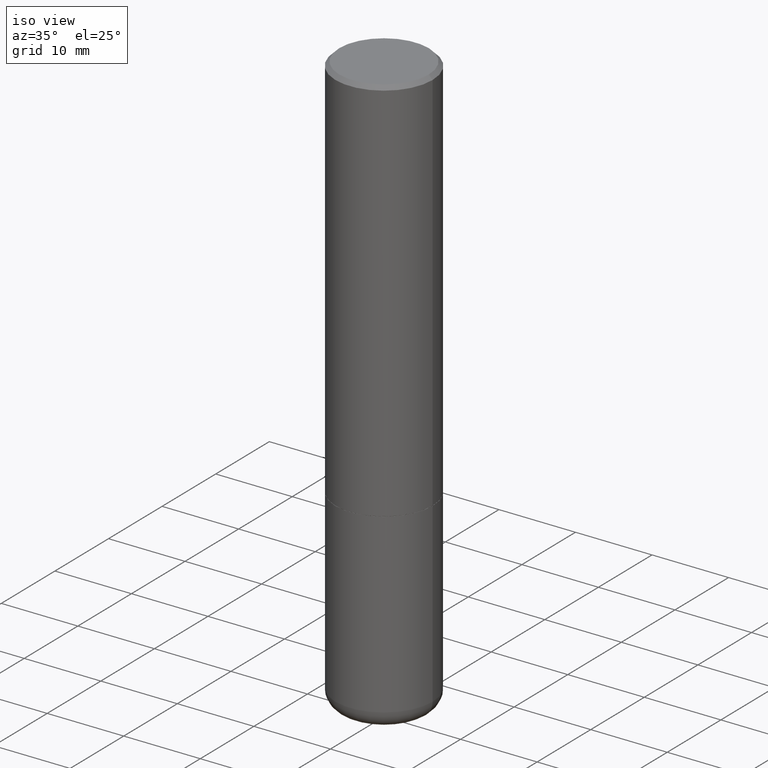
[diagram: clean part render]
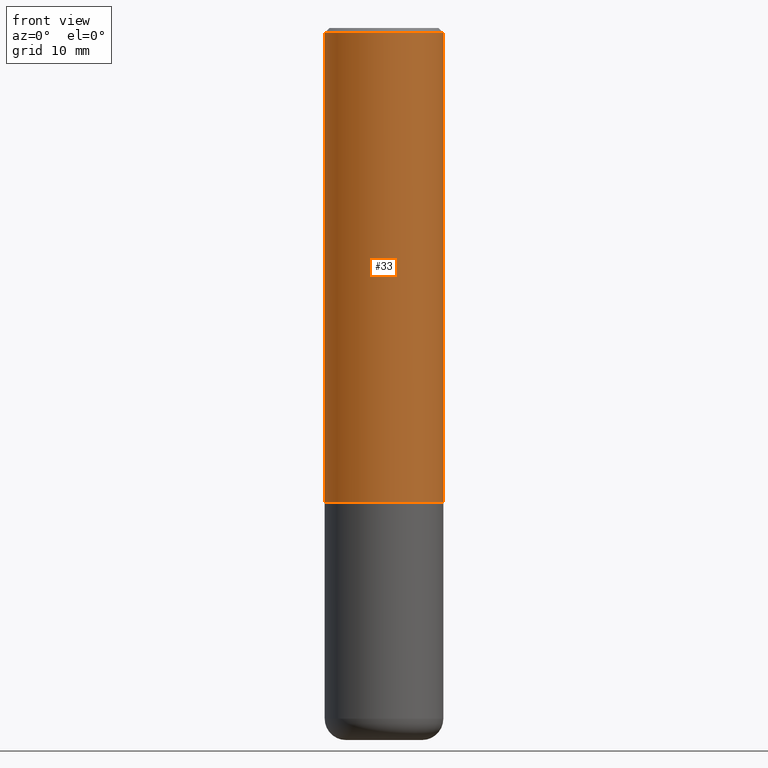
[diagram: tour spotlight — one face highlighted and labeled with its STEP entity id]
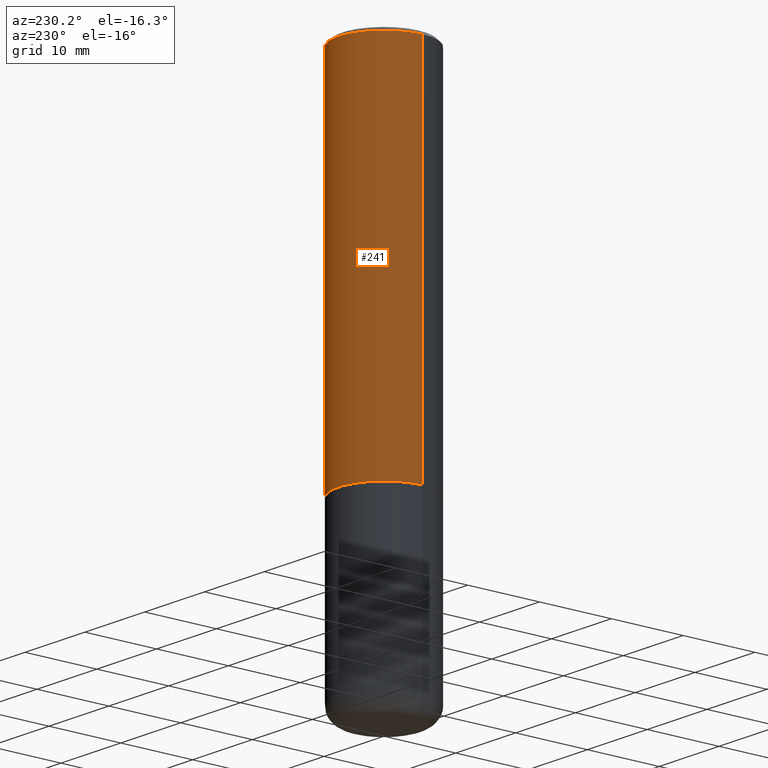
[diagram: tour spotlight — one face highlighted and labeled with its STEP entity id]
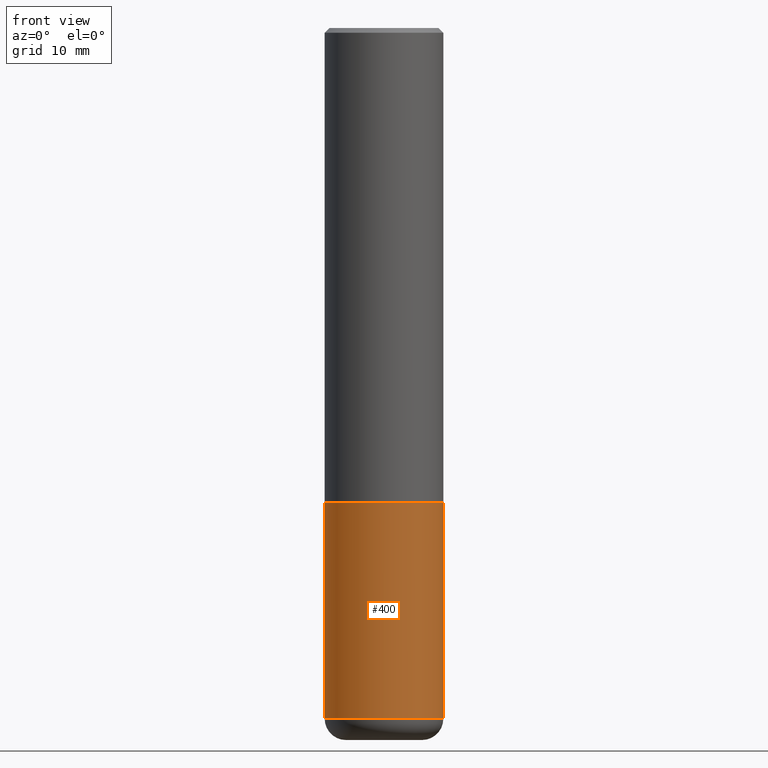
[diagram: tour spotlight — one face highlighted and labeled with its STEP entity id]
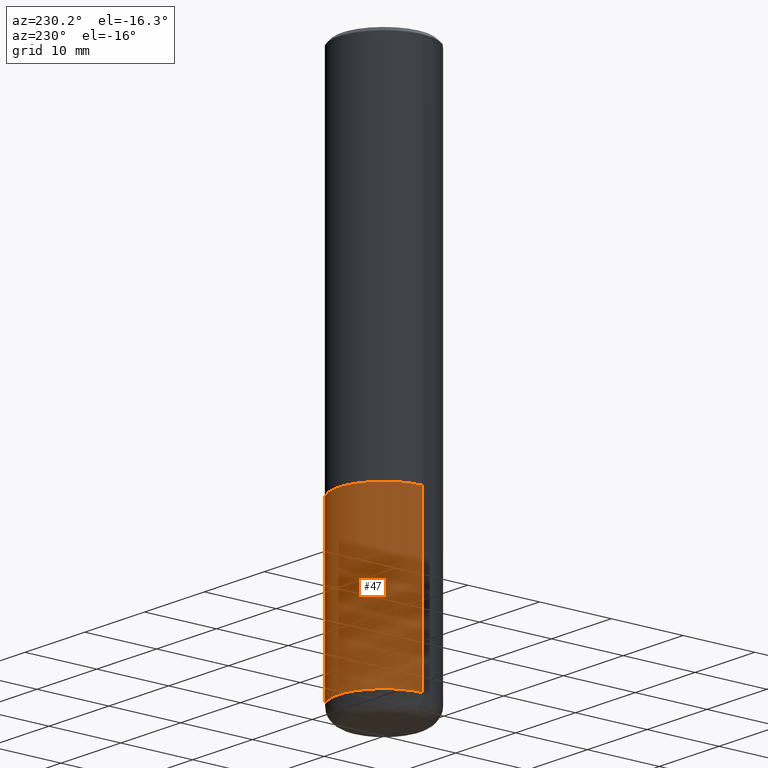
[diagram: tour spotlight — one face highlighted and labeled with its STEP entity id]
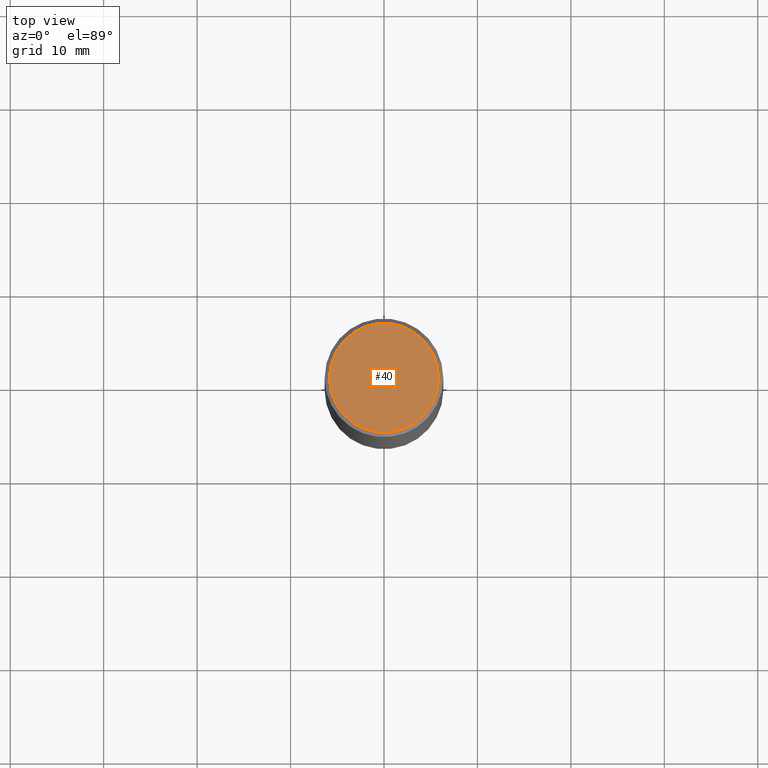
[diagram: tour spotlight — one face highlighted and labeled with its STEP entity id]
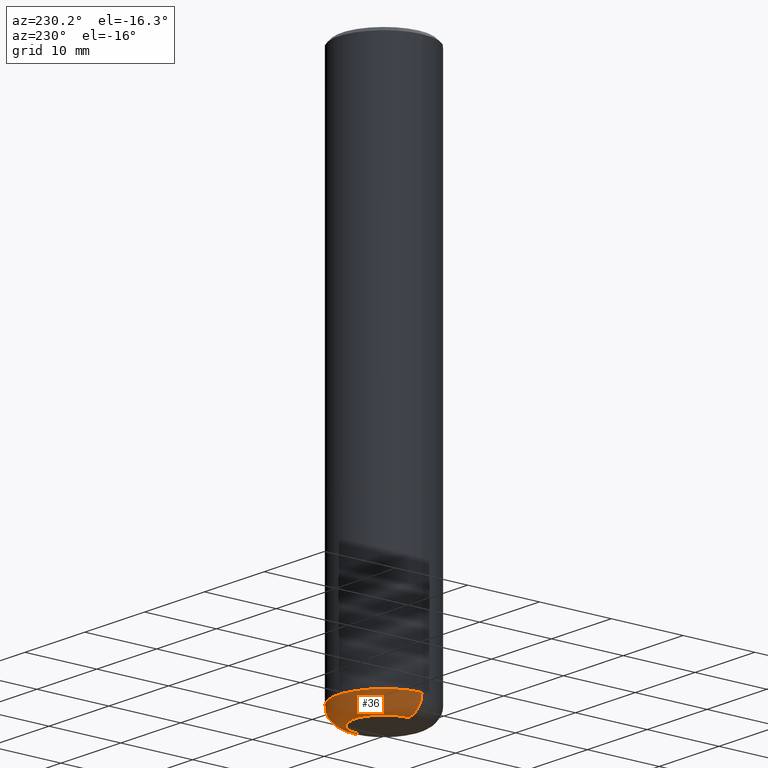
[diagram: tour spotlight — one face highlighted and labeled with its STEP entity id]
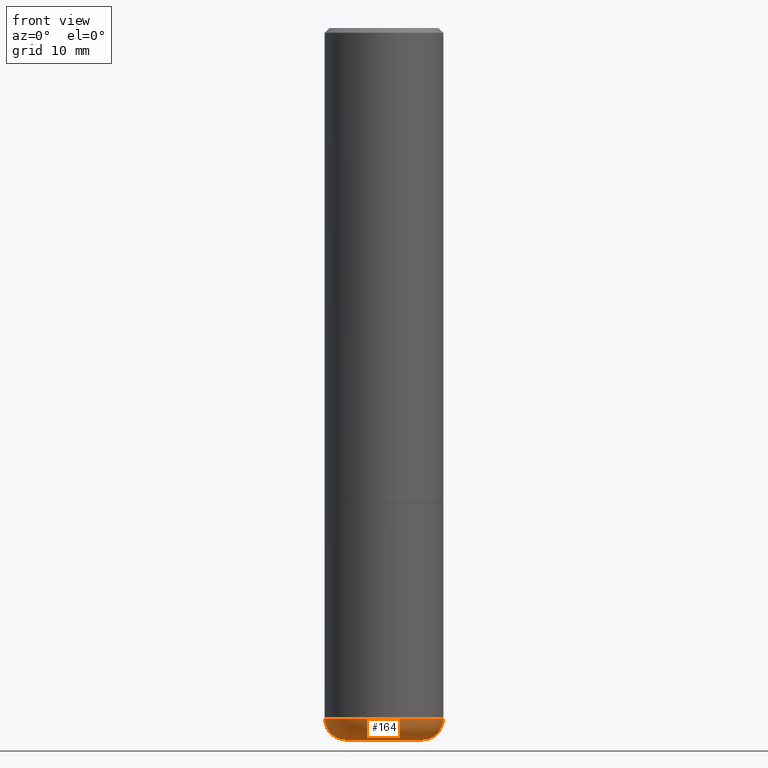
[diagram: tour spotlight — one face highlighted and labeled with its STEP entity id]
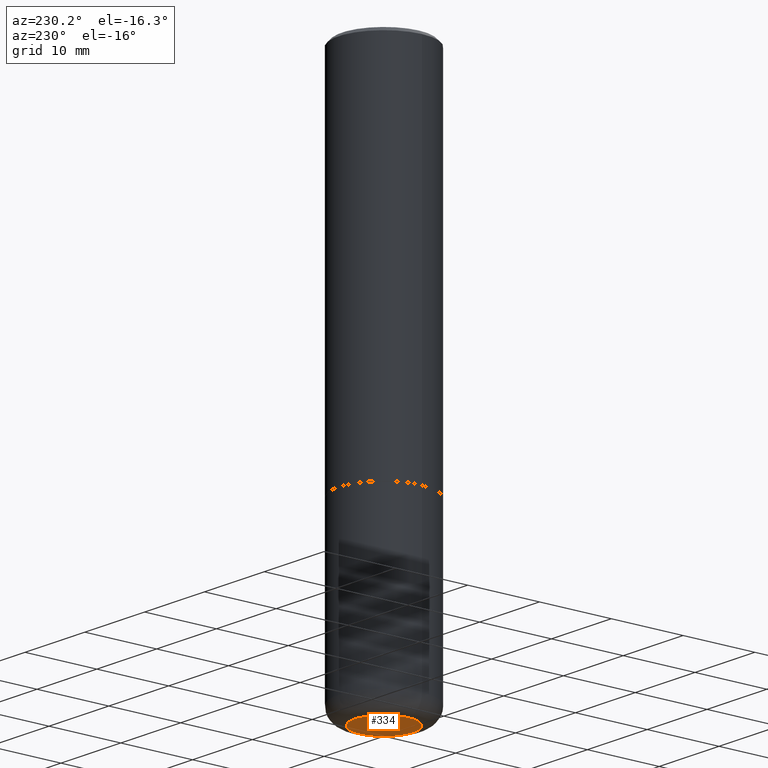
[diagram: tour spotlight — one face highlighted and labeled with its STEP entity id]
A machine part: a face-by-face anatomy tour. The part has 14 B-rep faces; the first image is the clean iso view, then the 8 largest visible faces are spotlighted one at a time (largest first), each with its STEP entity span.

Face 1 — front view, entity #33. In plain terms, the highlighted cylindrical surface (partial cylindrical patch) has radius 6.35 mm, axis along (-0, 0, 1).
Definition (entity closure, byte-faithful):
#8 = CARTESIAN_POINT ( 'NONE',  ( 4.890937612370287172E-31, -6.982962677686310098E-17, -0.02000000000000005593 ) ) ;
#33 = ADVANCED_FACE ( 'NONE', ( #124 ), #230, .T. ) ;
#35 = CARTESIAN_POINT ( 'NONE',  ( -0.2500000000000001110, 1.776356839400251254E-15, -1.229733772563727146E-29 ) ) ;
#44 = VERTEX_POINT ( 'NONE', #51 ) ;
#51 = CARTESIAN_POINT ( 'NONE',  ( 0.2500000000000000000, -1.784954126219746189E-15, -0.02000000000000005593 ) ) ;
#53 = DIRECTION ( 'NONE',  ( 1.000000000000000000, -6.982962677686267499E-15, 4.876176775795936353E-29 ) ) ;
#79 = ORIENTED_EDGE ( 'NONE', *, *, #139, .F. ) ;
#97 = EDGE_CURVE ( 'NONE', #159, #44, #364, .T. ) ;
#114 = EDGE_CURVE ( 'NONE', #354, #313, #228, .T. ) ;
#124 = FACE_OUTER_BOUND ( 'NONE', #127, .T. ) ;
#127 = EDGE_LOOP ( 'NONE', ( #79, #309, #321, #261 ) ) ;
#133 = AXIS2_PLACEMENT_3D ( 'NONE', #351, #231, #53 ) ;
#136 = LINE ( 'NONE', #374, #336 ) ;
#139 = EDGE_CURVE ( 'NONE', #354, #159, #329, .T. ) ;
#141 = DIRECTION ( 'NONE',  ( -2.445468806185136877E-29, 3.491481338843145188E-15, 1.000000000000000000 ) ) ;
#143 = CARTESIAN_POINT ( 'NONE',  ( -0.2500000000000002220, -1.748293572161901516E-15, -1.999000000000000110 ) ) ;
#159 = VERTEX_POINT ( 'NONE', #234 ) ;
#173 = CARTESIAN_POINT ( 'NONE',  ( 0.2500000000000002220, -8.725211865769017202E-15, -1.999000000000000110 ) ) ;
#183 = VECTOR ( 'NONE', #268, 39.37007874015748143 ) ;
#228 = CIRCLE ( 'NONE', #395, 0.2500000000000002220 ) ;
#230 = CYLINDRICAL_SURFACE ( 'NONE', #133, 0.2500000000000001110 ) ;
#231 = DIRECTION ( 'NONE',  ( -2.445468806185136597E-29, 3.491481338843145583E-15, 1.000000000000000000 ) ) ;
#234 = CARTESIAN_POINT ( 'NONE',  ( -0.2500000000000000000, 1.675911042644703577E-15, -0.02000000000000005593 ) ) ;
#261 = ORIENTED_EDGE ( 'NONE', *, *, #97, .F. ) ;
#268 = DIRECTION ( 'NONE',  ( -2.445468806185136877E-29, 3.491481338843145188E-15, 1.000000000000000000 ) ) ;
#296 = DIRECTION ( 'NONE',  ( -2.445468806185136597E-29, 3.491481338843145583E-15, 1.000000000000000000 ) ) ;
#307 = EDGE_CURVE ( 'NONE', #313, #44, #136, .T. ) ;
#309 = ORIENTED_EDGE ( 'NONE', *, *, #114, .T. ) ;
#313 = VERTEX_POINT ( 'NONE', #173 ) ;
#321 = ORIENTED_EDGE ( 'NONE', *, *, #307, .T. ) ;
#329 = LINE ( 'NONE', #35, #183 ) ;
#335 = CARTESIAN_POINT ( 'NONE',  ( 4.888492143564088712E-29, -6.979471196347448158E-15, -1.999000000000000110 ) ) ;
#336 = VECTOR ( 'NONE', #141, 39.37007874015748143 ) ;
#351 = CARTESIAN_POINT ( 'NONE',  ( 0.000000000000000000, 0.000000000000000000, 0.000000000000000000 ) ) ;
#354 = VERTEX_POINT ( 'NONE', #143 ) ;
#364 = CIRCLE ( 'NONE', #403, 0.2500000000000000000 ) ;
#365 = DIRECTION ( 'NONE',  ( 1.000000000000000000, -6.982962677686266711E-15, 0.000000000000000000 ) ) ;
#374 = CARTESIAN_POINT ( 'NONE',  ( 0.2500000000000001110, -1.745740669421567664E-15, 1.219044193948984649E-29 ) ) ;
#388 = DIRECTION ( 'NONE',  ( -2.445468806185136597E-29, 3.491481338843145583E-15, 1.000000000000000000 ) ) ;
#391 = DIRECTION ( 'NONE',  ( 1.000000000000000000, -6.982962677686268288E-15, 0.000000000000000000 ) ) ;
#395 = AXIS2_PLACEMENT_3D ( 'NONE', #335, #296, #391 ) ;
#403 = AXIS2_PLACEMENT_3D ( 'NONE', #8, #388, #365 ) ;

Face 2 — auxiliary view, entity #241. In plain terms, the highlighted cylindrical surface (partial cylindrical patch) has radius 6.35 mm, axis along (-0, 0, 1).
Definition (entity closure, byte-faithful):
#11 = DIRECTION ( 'NONE',  ( 1.000000000000000000, -6.982962677686266711E-15, 0.000000000000000000 ) ) ;
#24 = AXIS2_PLACEMENT_3D ( 'NONE', #78, #278, #272 ) ;
#29 = DIRECTION ( 'NONE',  ( 1.000000000000000000, -6.982962677686267499E-15, 4.876176775795936353E-29 ) ) ;
#35 = CARTESIAN_POINT ( 'NONE',  ( -0.2500000000000001110, 1.776356839400251254E-15, -1.229733772563727146E-29 ) ) ;
#37 = CYLINDRICAL_SURFACE ( 'NONE', #119, 0.2500000000000001110 ) ;
#44 = VERTEX_POINT ( 'NONE', #51 ) ;
#51 = CARTESIAN_POINT ( 'NONE',  ( 0.2500000000000000000, -1.784954126219746189E-15, -0.02000000000000005593 ) ) ;
#72 = CARTESIAN_POINT ( 'NONE',  ( 0.000000000000000000, 0.000000000000000000, 0.000000000000000000 ) ) ;
#78 = CARTESIAN_POINT ( 'NONE',  ( 4.888492143564088712E-29, -6.979471196347448158E-15, -1.999000000000000110 ) ) ;
#105 = CIRCLE ( 'NONE', #219, 0.2500000000000000000 ) ;
#115 = DIRECTION ( 'NONE',  ( -2.445468806185136597E-29, 3.491481338843145583E-15, 1.000000000000000000 ) ) ;
#119 = AXIS2_PLACEMENT_3D ( 'NONE', #72, #199, #29 ) ;
#136 = LINE ( 'NONE', #374, #336 ) ;
#139 = EDGE_CURVE ( 'NONE', #354, #159, #329, .T. ) ;
#141 = DIRECTION ( 'NONE',  ( -2.445468806185136877E-29, 3.491481338843145188E-15, 1.000000000000000000 ) ) ;
#143 = CARTESIAN_POINT ( 'NONE',  ( -0.2500000000000002220, -1.748293572161901516E-15, -1.999000000000000110 ) ) ;
#159 = VERTEX_POINT ( 'NONE', #234 ) ;
#173 = CARTESIAN_POINT ( 'NONE',  ( 0.2500000000000002220, -8.725211865769017202E-15, -1.999000000000000110 ) ) ;
#180 = ORIENTED_EDGE ( 'NONE', *, *, #307, .F. ) ;
#183 = VECTOR ( 'NONE', #268, 39.37007874015748143 ) ;
#199 = DIRECTION ( 'NONE',  ( -2.445468806185136597E-29, 3.491481338843145583E-15, 1.000000000000000000 ) ) ;
#219 = AXIS2_PLACEMENT_3D ( 'NONE', #242, #115, #11 ) ;
#234 = CARTESIAN_POINT ( 'NONE',  ( -0.2500000000000000000, 1.675911042644703577E-15, -0.02000000000000005593 ) ) ;
#241 = ADVANCED_FACE ( 'NONE', ( #337 ), #37, .T. ) ;
#242 = CARTESIAN_POINT ( 'NONE',  ( 4.890937612370287172E-31, -6.982962677686310098E-17, -0.02000000000000005593 ) ) ;
#254 = CIRCLE ( 'NONE', #24, 0.2500000000000002220 ) ;
#268 = DIRECTION ( 'NONE',  ( -2.445468806185136877E-29, 3.491481338843145188E-15, 1.000000000000000000 ) ) ;
#272 = DIRECTION ( 'NONE',  ( 1.000000000000000000, -6.982962677686268288E-15, 0.000000000000000000 ) ) ;
#275 = EDGE_CURVE ( 'NONE', #44, #159, #105, .T. ) ;
#278 = DIRECTION ( 'NONE',  ( -2.445468806185136597E-29, 3.491481338843145583E-15, 1.000000000000000000 ) ) ;
#286 = ORIENTED_EDGE ( 'NONE', *, *, #275, .F. ) ;
#307 = EDGE_CURVE ( 'NONE', #313, #44, #136, .T. ) ;
#313 = VERTEX_POINT ( 'NONE', #173 ) ;
#317 = ORIENTED_EDGE ( 'NONE', *, *, #139, .T. ) ;
#329 = LINE ( 'NONE', #35, #183 ) ;
#336 = VECTOR ( 'NONE', #141, 39.37007874015748143 ) ;
#337 = FACE_OUTER_BOUND ( 'NONE', #384, .T. ) ;
#354 = VERTEX_POINT ( 'NONE', #143 ) ;
#358 = EDGE_CURVE ( 'NONE', #313, #354, #254, .T. ) ;
#374 = CARTESIAN_POINT ( 'NONE',  ( 0.2500000000000001110, -1.745740669421567664E-15, 1.219044193948984649E-29 ) ) ;
#384 = EDGE_LOOP ( 'NONE', ( #399, #317, #286, #180 ) ) ;
#399 = ORIENTED_EDGE ( 'NONE', *, *, #358, .T. ) ;

Face 3 — front view, entity #400. In plain terms, the highlighted cylindrical surface (partial cylindrical patch) has radius 6.35 mm, axis along (-0, 0, 1).
Definition (entity closure, byte-faithful):
#4 = LINE ( 'NONE', #130, #126 ) ;
#14 = CARTESIAN_POINT ( 'NONE',  ( 4.890937612370273754E-29, -6.982962677686291954E-15, -2.000000000000000444 ) ) ;
#17 = LINE ( 'NONE', #370, #140 ) ;
#58 = ORIENTED_EDGE ( 'NONE', *, *, #297, .F. ) ;
#67 = DIRECTION ( 'NONE',  ( 1.000000000000000000, -6.982962677686270655E-15, 0.000000000000000000 ) ) ;
#68 = EDGE_CURVE ( 'NONE', #277, #397, #71, .T. ) ;
#71 = CIRCLE ( 'NONE', #266, 0.2500000000000000000 ) ;
#73 = DIRECTION ( 'NONE',  ( -2.445468806185136597E-29, 3.491481338843145583E-15, 1.000000000000000000 ) ) ;
#85 = AXIS2_PLACEMENT_3D ( 'NONE', #14, #73, #367 ) ;
#95 = AXIS2_PLACEMENT_3D ( 'NONE', #404, #251, #113 ) ;
#113 = DIRECTION ( 'NONE',  ( 1.000000000000000000, -6.982962677686266711E-15, 4.876176775795935793E-29 ) ) ;
#126 = VECTOR ( 'NONE', #232, 39.37007874015748143 ) ;
#130 = CARTESIAN_POINT ( 'NONE',  ( -0.2500000000000000000, 1.776356839400250465E-15, -1.229733772563726445E-29 ) ) ;
#140 = VECTOR ( 'NONE', #368, 39.37007874015748143 ) ;
#167 = CARTESIAN_POINT ( 'NONE',  ( 7.116314225998749245E-29, -1.016021069603355467E-14, -2.910000000000000586 ) ) ;
#176 = CARTESIAN_POINT ( 'NONE',  ( 0.2499999999999998335, -1.190595136545512292E-14, -2.910000000000000586 ) ) ;
#179 = FACE_OUTER_BOUND ( 'NONE', #250, .T. ) ;
#213 = CARTESIAN_POINT ( 'NONE',  ( -0.2500000000000000000, -6.795229847459672846E-15, -2.000000000000000444 ) ) ;
#215 = CARTESIAN_POINT ( 'NONE',  ( 0.2500000000000000000, -8.728703347107858632E-15, -2.000000000000000444 ) ) ;
#218 = ORIENTED_EDGE ( 'NONE', *, *, #318, .T. ) ;
#232 = DIRECTION ( 'NONE',  ( -2.445468806185136877E-29, 3.491481338843145188E-15, 1.000000000000000000 ) ) ;
#235 = DIRECTION ( 'NONE',  ( -2.445468806185136597E-29, 3.491481338843145583E-15, 1.000000000000000000 ) ) ;
#247 = ORIENTED_EDGE ( 'NONE', *, *, #258, .F. ) ;
#249 = CARTESIAN_POINT ( 'NONE',  ( -0.2499999999999998335, -8.383853856633305780E-15, -2.910000000000000586 ) ) ;
#250 = EDGE_LOOP ( 'NONE', ( #247, #325, #218, #58 ) ) ;
#251 = DIRECTION ( 'NONE',  ( -2.445468806185136597E-29, 3.491481338843145583E-15, 1.000000000000000000 ) ) ;
#258 = EDGE_CURVE ( 'NONE', #277, #380, #4, .T. ) ;
#266 = AXIS2_PLACEMENT_3D ( 'NONE', #167, #235, #67 ) ;
#273 = CIRCLE ( 'NONE', #85, 0.2500000000000000000 ) ;
#277 = VERTEX_POINT ( 'NONE', #249 ) ;
#297 = EDGE_CURVE ( 'NONE', #380, #417, #273, .T. ) ;
#310 = CYLINDRICAL_SURFACE ( 'NONE', #95, 0.2500000000000000000 ) ;
#318 = EDGE_CURVE ( 'NONE', #397, #417, #17, .T. ) ;
#325 = ORIENTED_EDGE ( 'NONE', *, *, #68, .T. ) ;
#367 = DIRECTION ( 'NONE',  ( 1.000000000000000000, -6.982962677686266711E-15, 0.000000000000000000 ) ) ;
#368 = DIRECTION ( 'NONE',  ( -2.445468806185136877E-29, 3.491481338843145188E-15, 1.000000000000000000 ) ) ;
#370 = CARTESIAN_POINT ( 'NONE',  ( 0.2500000000000000000, -1.745740669421566678E-15, 1.219044193948983948E-29 ) ) ;
#380 = VERTEX_POINT ( 'NONE', #213 ) ;
#397 = VERTEX_POINT ( 'NONE', #176 ) ;
#400 = ADVANCED_FACE ( 'NONE', ( #179 ), #310, .T. ) ;
#404 = CARTESIAN_POINT ( 'NONE',  ( 0.000000000000000000, 0.000000000000000000, 0.000000000000000000 ) ) ;
#417 = VERTEX_POINT ( 'NONE', #215 ) ;

Face 4 — auxiliary view, entity #47. In plain terms, the highlighted cylindrical surface (partial cylindrical patch) has radius 6.35 mm, axis along (-0, 0, 1).
Definition (entity closure, byte-faithful):
#2 = AXIS2_PLACEMENT_3D ( 'NONE', #98, #135, #361 ) ;
#4 = LINE ( 'NONE', #130, #126 ) ;
#17 = LINE ( 'NONE', #370, #140 ) ;
#21 = FACE_OUTER_BOUND ( 'NONE', #315, .T. ) ;
#43 = DIRECTION ( 'NONE',  ( -2.445468806185136597E-29, 3.491481338843145583E-15, 1.000000000000000000 ) ) ;
#47 = ADVANCED_FACE ( 'NONE', ( #21 ), #153, .T. ) ;
#98 = CARTESIAN_POINT ( 'NONE',  ( 4.890937612370273754E-29, -6.982962677686291954E-15, -2.000000000000000444 ) ) ;
#126 = VECTOR ( 'NONE', #232, 39.37007874015748143 ) ;
#130 = CARTESIAN_POINT ( 'NONE',  ( -0.2500000000000000000, 1.776356839400250465E-15, -1.229733772563726445E-29 ) ) ;
#135 = DIRECTION ( 'NONE',  ( -2.445468806185136597E-29, 3.491481338843145583E-15, 1.000000000000000000 ) ) ;
#140 = VECTOR ( 'NONE', #368, 39.37007874015748143 ) ;
#153 = CYLINDRICAL_SURFACE ( 'NONE', #356, 0.2500000000000000000 ) ;
#154 = CIRCLE ( 'NONE', #265, 0.2500000000000000000 ) ;
#176 = CARTESIAN_POINT ( 'NONE',  ( 0.2499999999999998335, -1.190595136545512292E-14, -2.910000000000000586 ) ) ;
#178 = EDGE_CURVE ( 'NONE', #417, #380, #343, .T. ) ;
#213 = CARTESIAN_POINT ( 'NONE',  ( -0.2500000000000000000, -6.795229847459672846E-15, -2.000000000000000444 ) ) ;
#214 = ORIENTED_EDGE ( 'NONE', *, *, #318, .F. ) ;
#215 = CARTESIAN_POINT ( 'NONE',  ( 0.2500000000000000000, -8.728703347107858632E-15, -2.000000000000000444 ) ) ;
#225 = ORIENTED_EDGE ( 'NONE', *, *, #178, .F. ) ;
#232 = DIRECTION ( 'NONE',  ( -2.445468806185136877E-29, 3.491481338843145188E-15, 1.000000000000000000 ) ) ;
#249 = CARTESIAN_POINT ( 'NONE',  ( -0.2499999999999998335, -8.383853856633305780E-15, -2.910000000000000586 ) ) ;
#258 = EDGE_CURVE ( 'NONE', #277, #380, #4, .T. ) ;
#263 = DIRECTION ( 'NONE',  ( 1.000000000000000000, -6.982962677686266711E-15, 4.876176775795935793E-29 ) ) ;
#265 = AXIS2_PLACEMENT_3D ( 'NONE', #398, #43, #342 ) ;
#277 = VERTEX_POINT ( 'NONE', #249 ) ;
#288 = CARTESIAN_POINT ( 'NONE',  ( 0.000000000000000000, 0.000000000000000000, 0.000000000000000000 ) ) ;
#293 = ORIENTED_EDGE ( 'NONE', *, *, #311, .T. ) ;
#311 = EDGE_CURVE ( 'NONE', #397, #277, #154, .T. ) ;
#315 = EDGE_LOOP ( 'NONE', ( #293, #406, #225, #214 ) ) ;
#318 = EDGE_CURVE ( 'NONE', #397, #417, #17, .T. ) ;
#342 = DIRECTION ( 'NONE',  ( 1.000000000000000000, -6.982962677686270655E-15, 0.000000000000000000 ) ) ;
#343 = CIRCLE ( 'NONE', #2, 0.2500000000000000000 ) ;
#356 = AXIS2_PLACEMENT_3D ( 'NONE', #288, #362, #263 ) ;
#361 = DIRECTION ( 'NONE',  ( 1.000000000000000000, -6.982962677686266711E-15, 0.000000000000000000 ) ) ;
#362 = DIRECTION ( 'NONE',  ( -2.445468806185136597E-29, 3.491481338843145583E-15, 1.000000000000000000 ) ) ;
#368 = DIRECTION ( 'NONE',  ( -2.445468806185136877E-29, 3.491481338843145188E-15, 1.000000000000000000 ) ) ;
#370 = CARTESIAN_POINT ( 'NONE',  ( 0.2500000000000000000, -1.745740669421566678E-15, 1.219044193948983948E-29 ) ) ;
#380 = VERTEX_POINT ( 'NONE', #213 ) ;
#397 = VERTEX_POINT ( 'NONE', #176 ) ;
#398 = CARTESIAN_POINT ( 'NONE',  ( 7.116314225998749245E-29, -1.016021069603355467E-14, -2.910000000000000586 ) ) ;
#406 = ORIENTED_EDGE ( 'NONE', *, *, #258, .T. ) ;
#417 = VERTEX_POINT ( 'NONE', #215 ) ;

Face 5 — top view, entity #40. In plain terms, the highlighted planar face has unit normal (0, -0, -1).
Definition (entity closure, byte-faithful):
#7 = CIRCLE ( 'NONE', #65, 0.2299999999999998712 ) ;
#9 = DIRECTION ( 'NONE',  ( -2.445468806185136597E-29, 3.491481338843145583E-15, 1.000000000000000000 ) ) ;
#40 = ADVANCED_FACE ( 'NONE', ( #408 ), #189, .F. ) ;
#46 = VERTEX_POINT ( 'NONE', #186 ) ;
#62 = ORIENTED_EDGE ( 'NONE', *, *, #63, .T. ) ;
#63 = EDGE_CURVE ( 'NONE', #253, #46, #322, .T. ) ;
#65 = AXIS2_PLACEMENT_3D ( 'NONE', #276, #282, #305 ) ;
#87 = CARTESIAN_POINT ( 'NONE',  ( 1.606081415867840278E-15, 0.2299999999999998712, -7.411472768274671077E-16 ) ) ;
#93 = AXIS2_PLACEMENT_3D ( 'NONE', #87, #222, #350 ) ;
#162 = CARTESIAN_POINT ( 'NONE',  ( 0.2299999999999998712, -1.681434332853598419E-15, 1.237868622129234180E-16 ) ) ;
#165 = DIRECTION ( 'NONE',  ( 1.000000000000000000, -6.982962677686266711E-15, 4.879110437680778240E-29 ) ) ;
#182 = ORIENTED_EDGE ( 'NONE', *, *, #371, .T. ) ;
#186 = CARTESIAN_POINT ( 'NONE',  ( -0.2299999999999998712, 1.640996229256272125E-15, 1.237868622129005656E-16 ) ) ;
#189 = PLANE ( 'NONE',  #93 ) ;
#198 = AXIS2_PLACEMENT_3D ( 'NONE', #201, #9, #165 ) ;
#201 = CARTESIAN_POINT ( 'NONE',  ( -3.027169101572137302E-45, 4.321995194103296744E-31, 1.237868622129119302E-16 ) ) ;
#222 = DIRECTION ( 'NONE',  ( 2.438088387897960049E-29, -3.491481338843145188E-15, -1.000000000000000000 ) ) ;
#253 = VERTEX_POINT ( 'NONE', #162 ) ;
#274 = EDGE_LOOP ( 'NONE', ( #182, #62 ) ) ;
#276 = CARTESIAN_POINT ( 'NONE',  ( -3.027169101572137302E-45, 4.321995194103296744E-31, 1.237868622129119302E-16 ) ) ;
#282 = DIRECTION ( 'NONE',  ( -2.445468806185136597E-29, 3.491481338843145583E-15, 1.000000000000000000 ) ) ;
#305 = DIRECTION ( 'NONE',  ( 1.000000000000000000, -6.982962677686266711E-15, 4.879110437680778240E-29 ) ) ;
#322 = CIRCLE ( 'NONE', #198, 0.2299999999999998712 ) ;
#350 = DIRECTION ( 'NONE',  ( -1.000000000000000000, 6.982962677686265922E-15, -4.876176775795935793E-29 ) ) ;
#371 = EDGE_CURVE ( 'NONE', #46, #253, #7, .T. ) ;
#408 = FACE_OUTER_BOUND ( 'NONE', #274, .T. ) ;

Face 6 — auxiliary view, entity #36. In plain terms, the highlighted toroidal blend (fillet) surface has major radius 4.064 mm and minor (blend) radius 2.286 mm.
Definition (entity closure, byte-faithful):
#1 = EDGE_LOOP ( 'NONE', ( #291, #216, #240, #373 ) ) ;
#5 = CARTESIAN_POINT ( 'NONE',  ( -0.1600000000000000033, -8.860714747973291991E-15, -2.999999999999999556 ) ) ;
#12 = CIRCLE ( 'NONE', #294, 0.08999999999999964972 ) ;
#18 = DIRECTION ( 'NONE',  ( -2.445468806185136597E-29, 3.491481338843145583E-15, 1.000000000000000000 ) ) ;
#36 = ADVANCED_FACE ( 'NONE', ( #376 ), #111, .T. ) ;
#43 = DIRECTION ( 'NONE',  ( -2.445468806185136597E-29, 3.491481338843145583E-15, 1.000000000000000000 ) ) ;
#69 = DIRECTION ( 'NONE',  ( 1.000000000000000000, -6.982962677686271444E-15, 0.000000000000000000 ) ) ;
#83 = VERTEX_POINT ( 'NONE', #5 ) ;
#103 = DIRECTION ( 'NONE',  ( -2.445468806185136597E-29, 3.491481338843145583E-15, 1.000000000000000000 ) ) ;
#109 = CARTESIAN_POINT ( 'NONE',  ( 0.1600000000000000033, -1.159171804495923808E-14, -2.999999999999999556 ) ) ;
#111 = TOROIDAL_SURFACE ( 'NONE', #360, 0.1600000000000000033, 0.08999999999999964972 ) ;
#154 = CIRCLE ( 'NONE', #265, 0.2500000000000000000 ) ;
#155 = DIRECTION ( 'NONE',  ( 1.000000000000000000, -6.982962677686265133E-15, 4.883557194083112340E-29 ) ) ;
#171 = CARTESIAN_POINT ( 'NONE',  ( -0.1600000000000000033, -9.023342318817394938E-15, -2.910000000000000586 ) ) ;
#176 = CARTESIAN_POINT ( 'NONE',  ( 0.2499999999999998335, -1.190595136545512292E-14, -2.910000000000000586 ) ) ;
#193 = EDGE_CURVE ( 'NONE', #344, #83, #386, .T. ) ;
#206 = AXIS2_PLACEMENT_3D ( 'NONE', #393, #103, #69 ) ;
#209 = CARTESIAN_POINT ( 'NONE',  ( 0.1600000000000000033, -1.127748472446335797E-14, -2.910000000000000586 ) ) ;
#216 = ORIENTED_EDGE ( 'NONE', *, *, #269, .T. ) ;
#233 = AXIS2_PLACEMENT_3D ( 'NONE', #209, #244, #280 ) ;
#240 = ORIENTED_EDGE ( 'NONE', *, *, #311, .F. ) ;
#244 = DIRECTION ( 'NONE',  ( -6.982962677686266711E-15, -1.000000000000000000, 3.491481338843145583E-15 ) ) ;
#249 = CARTESIAN_POINT ( 'NONE',  ( -0.2499999999999998335, -8.383853856633305780E-15, -2.910000000000000586 ) ) ;
#265 = AXIS2_PLACEMENT_3D ( 'NONE', #398, #43, #342 ) ;
#269 = EDGE_CURVE ( 'NONE', #83, #277, #12, .T. ) ;
#277 = VERTEX_POINT ( 'NONE', #249 ) ;
#280 = DIRECTION ( 'NONE',  ( 1.000000000000000000, -6.982962677686273810E-15, 0.000000000000000000 ) ) ;
#291 = ORIENTED_EDGE ( 'NONE', *, *, #193, .T. ) ;
#294 = AXIS2_PLACEMENT_3D ( 'NONE', #171, #345, #304 ) ;
#304 = DIRECTION ( 'NONE',  ( -1.000000000000000000, 7.105427357600996337E-15, 0.000000000000000000 ) ) ;
#306 = CIRCLE ( 'NONE', #233, 0.08999999999999964972 ) ;
#311 = EDGE_CURVE ( 'NONE', #397, #277, #154, .T. ) ;
#342 = DIRECTION ( 'NONE',  ( 1.000000000000000000, -6.982962677686270655E-15, 0.000000000000000000 ) ) ;
#344 = VERTEX_POINT ( 'NONE', #109 ) ;
#345 = DIRECTION ( 'NONE',  ( 7.105427357601001859E-15, 1.000000000000000000, -3.491481338843145583E-15 ) ) ;
#357 = CARTESIAN_POINT ( 'NONE',  ( 7.116314225998749245E-29, -1.016021069603355467E-14, -2.910000000000000586 ) ) ;
#360 = AXIS2_PLACEMENT_3D ( 'NONE', #357, #18, #155 ) ;
#373 = ORIENTED_EDGE ( 'NONE', *, *, #385, .F. ) ;
#376 = FACE_OUTER_BOUND ( 'NONE', #1, .T. ) ;
#385 = EDGE_CURVE ( 'NONE', #344, #397, #306, .T. ) ;
#386 = CIRCLE ( 'NONE', #206, 0.1600000000000000033 ) ;
#393 = CARTESIAN_POINT ( 'NONE',  ( 7.336406418555408669E-29, -1.047444401652943478E-14, -2.999999999999999556 ) ) ;
#397 = VERTEX_POINT ( 'NONE', #176 ) ;
#398 = CARTESIAN_POINT ( 'NONE',  ( 7.116314225998749245E-29, -1.016021069603355467E-14, -2.910000000000000586 ) ) ;

Face 7 — front view, entity #164. In plain terms, the highlighted toroidal blend (fillet) surface has major radius 4.064 mm and minor (blend) radius 2.286 mm.
Definition (entity closure, byte-faithful):
#5 = CARTESIAN_POINT ( 'NONE',  ( -0.1600000000000000033, -8.860714747973291991E-15, -2.999999999999999556 ) ) ;
#12 = CIRCLE ( 'NONE', #294, 0.08999999999999964972 ) ;
#25 = EDGE_CURVE ( 'NONE', #83, #344, #54, .T. ) ;
#34 = FACE_OUTER_BOUND ( 'NONE', #184, .T. ) ;
#49 = ORIENTED_EDGE ( 'NONE', *, *, #385, .T. ) ;
#54 = CIRCLE ( 'NONE', #355, 0.1600000000000000033 ) ;
#64 = CARTESIAN_POINT ( 'NONE',  ( 7.116314225998749245E-29, -1.016021069603355467E-14, -2.910000000000000586 ) ) ;
#67 = DIRECTION ( 'NONE',  ( 1.000000000000000000, -6.982962677686270655E-15, 0.000000000000000000 ) ) ;
#68 = EDGE_CURVE ( 'NONE', #277, #397, #71, .T. ) ;
#71 = CIRCLE ( 'NONE', #266, 0.2500000000000000000 ) ;
#76 = ORIENTED_EDGE ( 'NONE', *, *, #269, .F. ) ;
#83 = VERTEX_POINT ( 'NONE', #5 ) ;
#102 = DIRECTION ( 'NONE',  ( 1.000000000000000000, -6.982962677686265133E-15, 4.883557194083112340E-29 ) ) ;
#109 = CARTESIAN_POINT ( 'NONE',  ( 0.1600000000000000033, -1.159171804495923808E-14, -2.999999999999999556 ) ) ;
#118 = DIRECTION ( 'NONE',  ( -2.445468806185136597E-29, 3.491481338843145583E-15, 1.000000000000000000 ) ) ;
#142 = ORIENTED_EDGE ( 'NONE', *, *, #68, .F. ) ;
#157 = DIRECTION ( 'NONE',  ( 1.000000000000000000, -6.982962677686271444E-15, 0.000000000000000000 ) ) ;
#164 = ADVANCED_FACE ( 'NONE', ( #34 ), #369, .T. ) ;
#167 = CARTESIAN_POINT ( 'NONE',  ( 7.116314225998749245E-29, -1.016021069603355467E-14, -2.910000000000000586 ) ) ;
#171 = CARTESIAN_POINT ( 'NONE',  ( -0.1600000000000000033, -9.023342318817394938E-15, -2.910000000000000586 ) ) ;
#176 = CARTESIAN_POINT ( 'NONE',  ( 0.2499999999999998335, -1.190595136545512292E-14, -2.910000000000000586 ) ) ;
#184 = EDGE_LOOP ( 'NONE', ( #76, #256, #49, #142 ) ) ;
#190 = AXIS2_PLACEMENT_3D ( 'NONE', #64, #392, #102 ) ;
#209 = CARTESIAN_POINT ( 'NONE',  ( 0.1600000000000000033, -1.127748472446335797E-14, -2.910000000000000586 ) ) ;
#223 = CARTESIAN_POINT ( 'NONE',  ( 7.336406418555408669E-29, -1.047444401652943478E-14, -2.999999999999999556 ) ) ;
#233 = AXIS2_PLACEMENT_3D ( 'NONE', #209, #244, #280 ) ;
#235 = DIRECTION ( 'NONE',  ( -2.445468806185136597E-29, 3.491481338843145583E-15, 1.000000000000000000 ) ) ;
#244 = DIRECTION ( 'NONE',  ( -6.982962677686266711E-15, -1.000000000000000000, 3.491481338843145583E-15 ) ) ;
#249 = CARTESIAN_POINT ( 'NONE',  ( -0.2499999999999998335, -8.383853856633305780E-15, -2.910000000000000586 ) ) ;
#256 = ORIENTED_EDGE ( 'NONE', *, *, #25, .T. ) ;
#266 = AXIS2_PLACEMENT_3D ( 'NONE', #167, #235, #67 ) ;
#269 = EDGE_CURVE ( 'NONE', #83, #277, #12, .T. ) ;
#277 = VERTEX_POINT ( 'NONE', #249 ) ;
#280 = DIRECTION ( 'NONE',  ( 1.000000000000000000, -6.982962677686273810E-15, 0.000000000000000000 ) ) ;
#294 = AXIS2_PLACEMENT_3D ( 'NONE', #171, #345, #304 ) ;
#304 = DIRECTION ( 'NONE',  ( -1.000000000000000000, 7.105427357600996337E-15, 0.000000000000000000 ) ) ;
#306 = CIRCLE ( 'NONE', #233, 0.08999999999999964972 ) ;
#344 = VERTEX_POINT ( 'NONE', #109 ) ;
#345 = DIRECTION ( 'NONE',  ( 7.105427357601001859E-15, 1.000000000000000000, -3.491481338843145583E-15 ) ) ;
#355 = AXIS2_PLACEMENT_3D ( 'NONE', #223, #118, #157 ) ;
#369 = TOROIDAL_SURFACE ( 'NONE', #190, 0.1600000000000000033, 0.08999999999999964972 ) ;
#385 = EDGE_CURVE ( 'NONE', #344, #397, #306, .T. ) ;
#392 = DIRECTION ( 'NONE',  ( -2.445468806185136597E-29, 3.491481338843145583E-15, 1.000000000000000000 ) ) ;
#397 = VERTEX_POINT ( 'NONE', #176 ) ;

Face 8 — auxiliary view, entity #334. In plain terms, the highlighted planar face has unit normal (0, -0, -1).
Definition (entity closure, byte-faithful):
#5 = CARTESIAN_POINT ( 'NONE',  ( -0.1600000000000000033, -8.860714747973291991E-15, -2.999999999999999556 ) ) ;
#16 = FACE_OUTER_BOUND ( 'NONE', #283, .T. ) ;
#25 = EDGE_CURVE ( 'NONE', #83, #344, #54, .T. ) ;
#54 = CIRCLE ( 'NONE', #355, 0.1600000000000000033 ) ;
#69 = DIRECTION ( 'NONE',  ( 1.000000000000000000, -6.982962677686271444E-15, 0.000000000000000000 ) ) ;
#83 = VERTEX_POINT ( 'NONE', #5 ) ;
#96 = ORIENTED_EDGE ( 'NONE', *, *, #193, .F. ) ;
#103 = DIRECTION ( 'NONE',  ( -2.445468806185136597E-29, 3.491481338843145583E-15, 1.000000000000000000 ) ) ;
#109 = CARTESIAN_POINT ( 'NONE',  ( 0.1600000000000000033, -1.159171804495923808E-14, -2.999999999999999556 ) ) ;
#118 = DIRECTION ( 'NONE',  ( -2.445468806185136597E-29, 3.491481338843145583E-15, 1.000000000000000000 ) ) ;
#146 = DIRECTION ( 'NONE',  ( 2.438088387897960049E-29, -3.491481338843145188E-15, -1.000000000000000000 ) ) ;
#149 = PLANE ( 'NONE',  #212 ) ;
#157 = DIRECTION ( 'NONE',  ( 1.000000000000000000, -6.982962677686271444E-15, 0.000000000000000000 ) ) ;
#193 = EDGE_CURVE ( 'NONE', #344, #83, #386, .T. ) ;
#206 = AXIS2_PLACEMENT_3D ( 'NONE', #393, #103, #69 ) ;
#208 = DIRECTION ( 'NONE',  ( -1.000000000000000000, 6.982962677686265922E-15, -4.876176775795935793E-29 ) ) ;
#212 = AXIS2_PLACEMENT_3D ( 'NONE', #401, #146, #208 ) ;
#223 = CARTESIAN_POINT ( 'NONE',  ( 7.336406418555408669E-29, -1.047444401652943478E-14, -2.999999999999999556 ) ) ;
#283 = EDGE_LOOP ( 'NONE', ( #96, #411 ) ) ;
#334 = ADVANCED_FACE ( 'NONE', ( #16 ), #149, .T. ) ;
#344 = VERTEX_POINT ( 'NONE', #109 ) ;
#355 = AXIS2_PLACEMENT_3D ( 'NONE', #223, #118, #157 ) ;
#386 = CIRCLE ( 'NONE', #206, 0.1600000000000000033 ) ;
#393 = CARTESIAN_POINT ( 'NONE',  ( 7.336406418555408669E-29, -1.047444401652943478E-14, -2.999999999999999556 ) ) ;
#401 = CARTESIAN_POINT ( 'NONE',  ( 1.449005363638153220E-28, -2.300140402884442060E-16, -2.999999999999999556 ) ) ;
#411 = ORIENTED_EDGE ( 'NONE', *, *, #25, .F. ) ;